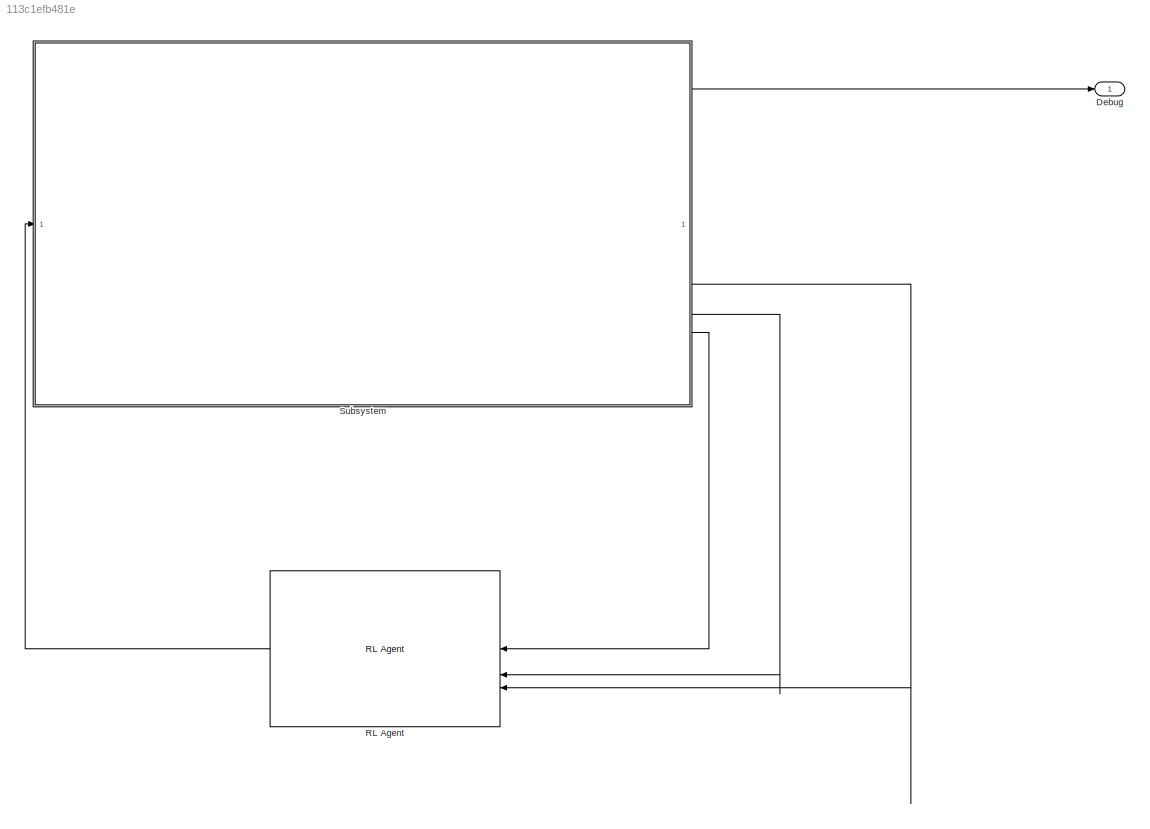
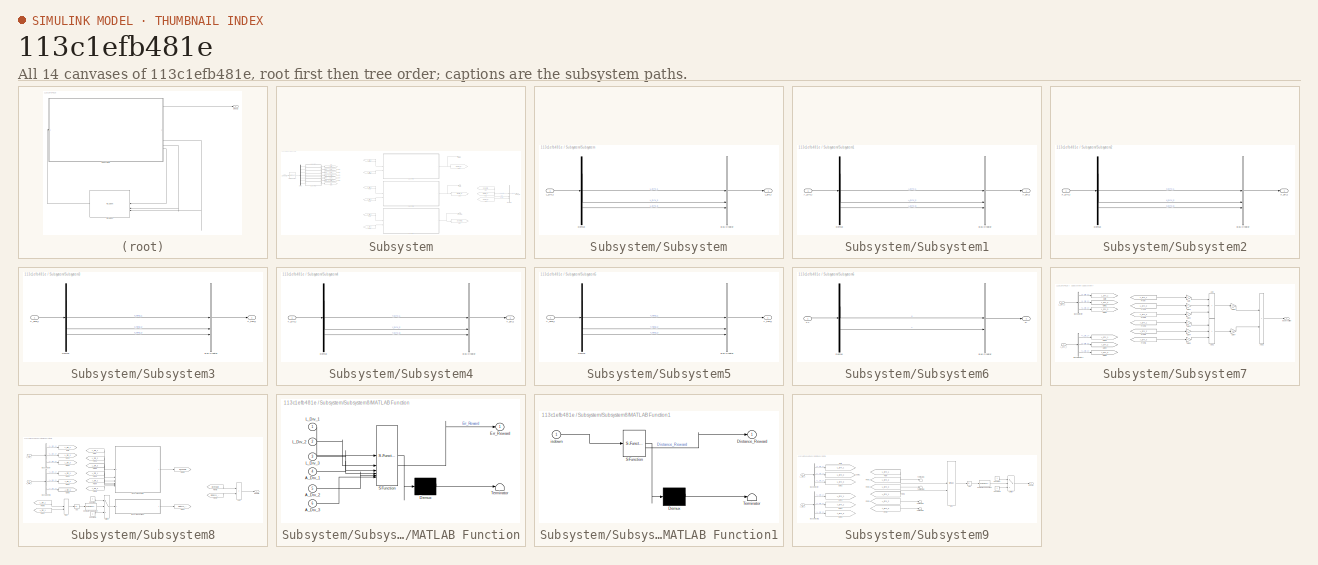
[diagram: thumbnail index - all 14 canvases of the model, root first then tree order]
MODEL slx_113c1efb481e
KIND model
CONFIG AbsTol = auto
CONFIG EnableMultiTasking = off
CONFIG FixedStep = auto
CONFIG MaxStep = auto
CONFIG MinStep = auto
CONFIG RelTol = 1e-3
CONFIG SampleTimeConstraint = Unconstrained
CONFIG SolverName = VariableStepAuto
CONFIG StartTime = 0.0
CONFIG StopTime = 60
BLOCK [Outport] Debug
BLOCK [Reference] RL Agent  REF=rllib/RL Agent
  NameLocation = top
  SourceBlock = rllib/RL Agent
  SourceType = RL Agent
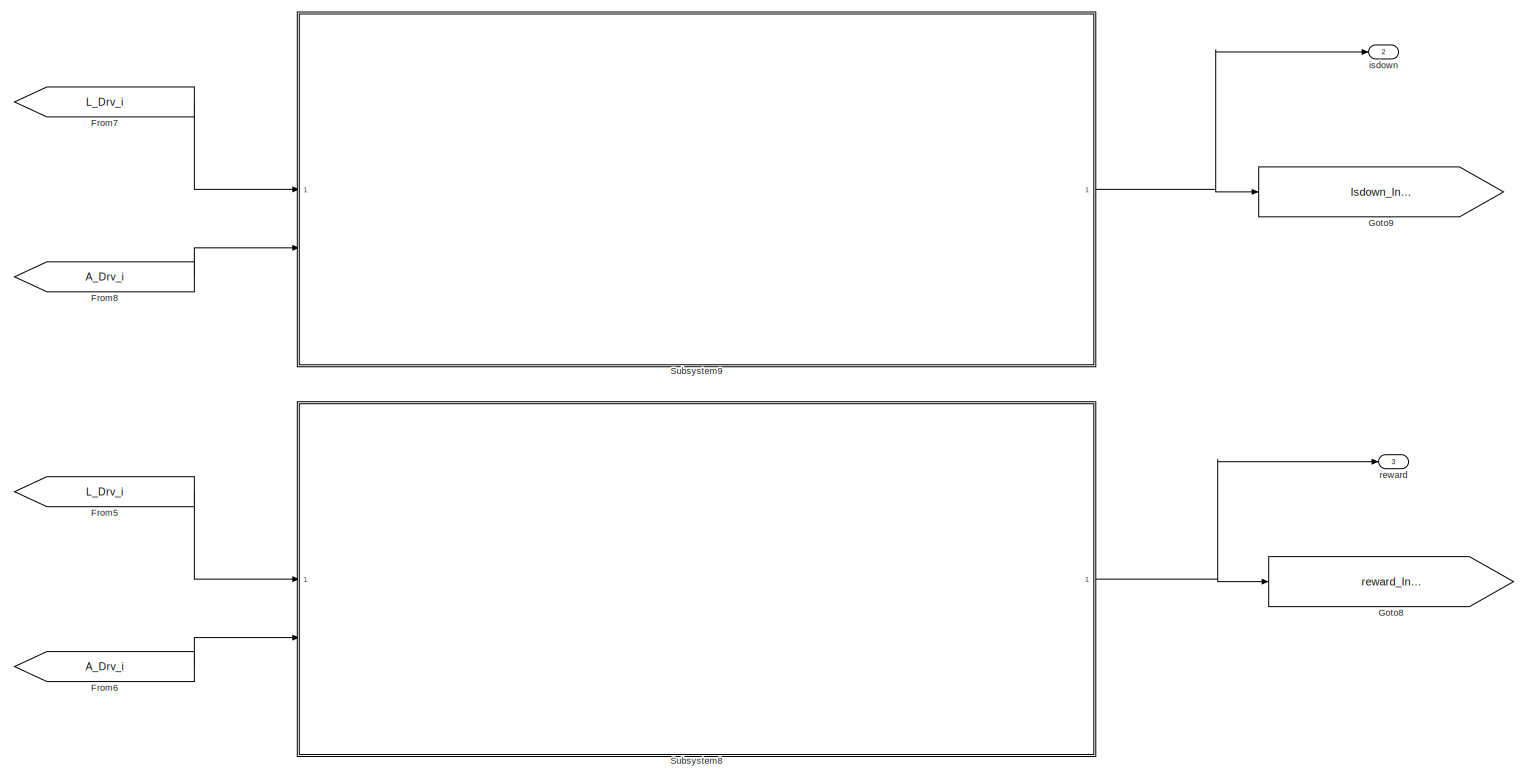
[diagram: Subsystem - part 1/4, central region]
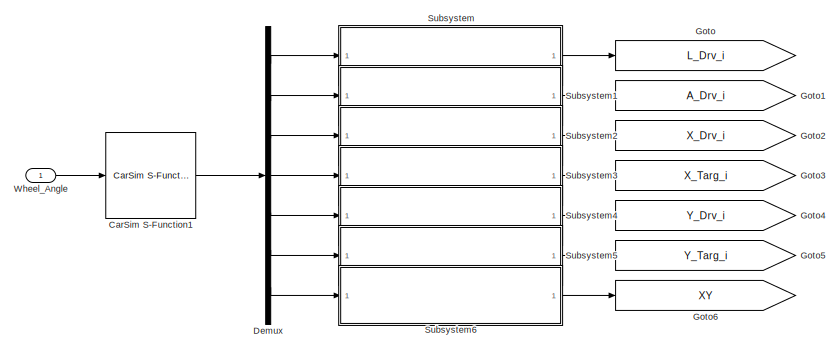
[diagram: Subsystem - part 2/4, top left region]
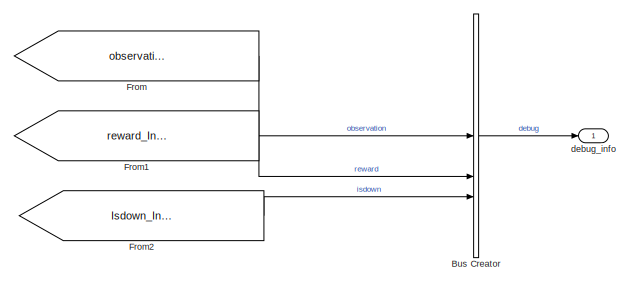
[diagram: Subsystem - part 3/4, middle right region]
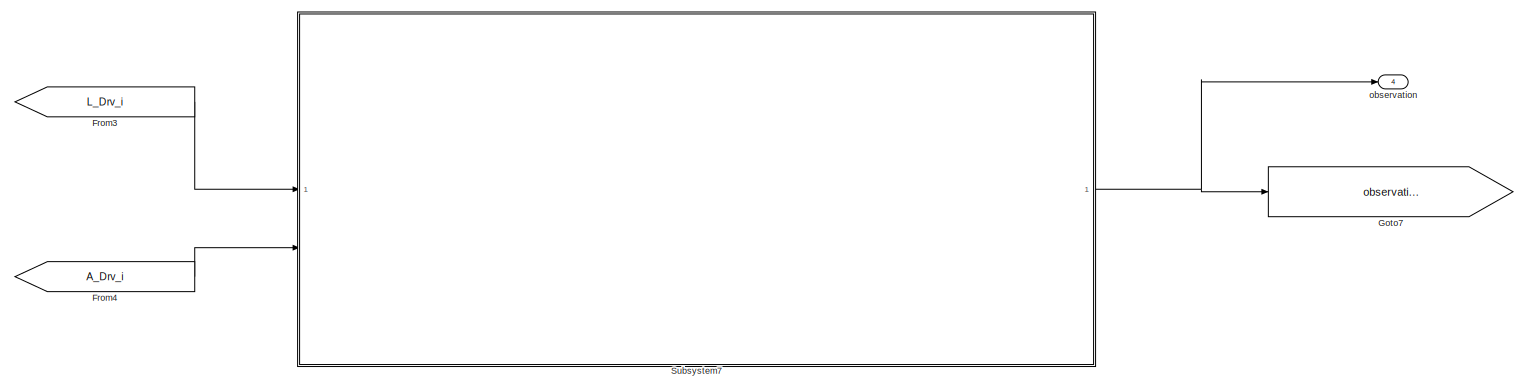
[diagram: Subsystem - part 4/4, bottom center region]
BLOCK [SubSystem] Subsystem
BLOCK [BusCreator] Subsystem/Bus Creator
  DisplayOption = bar
  InheritFromInputs = on
  Inputs = 3
BLOCK [Reference] Subsystem/CarSim S-Function1  REF=Solver_SF/CarSim S-Function
  Priority = 1
  SourceBlock = Solver_SF/CarSim S-Function
  SourceProductName = CarSim S-Function
  SourceType = Vehicle math model library
BLOCK [Demux] Subsystem/Demux
  Outputs = [3 3 3 3 3 3 2]
BLOCK [From] Subsystem/From
  GotoTag = observation_Info
BLOCK [From] Subsystem/From1
  GotoTag = reward_Info
BLOCK [From] Subsystem/From2
  GotoTag = Isdown_Info
BLOCK [From] Subsystem/From3
  GotoTag = L_Drv_i
BLOCK [From] Subsystem/From4
  GotoTag = A_Drv_i
BLOCK [From] Subsystem/From5
  GotoTag = L_Drv_i
BLOCK [From] Subsystem/From6
  GotoTag = A_Drv_i
BLOCK [From] Subsystem/From7
  GotoTag = L_Drv_i
BLOCK [From] Subsystem/From8
  GotoTag = A_Drv_i
BLOCK [Goto] Subsystem/Goto
  GotoTag = L_Drv_i
BLOCK [Goto] Subsystem/Goto1
  GotoTag = A_Drv_i
BLOCK [Goto] Subsystem/Goto2
  GotoTag = X_Drv_i
BLOCK [Goto] Subsystem/Goto3
  GotoTag = X_Targ_i
BLOCK [Goto] Subsystem/Goto4
  GotoTag = Y_Drv_i
BLOCK [Goto] Subsystem/Goto5
  GotoTag = Y_Targ_i
BLOCK [Goto] Subsystem/Goto6
  GotoTag = XY
BLOCK [Goto] Subsystem/Goto7
  GotoTag = observation_Info
BLOCK [Goto] Subsystem/Goto8
  GotoTag = reward_Info
BLOCK [Goto] Subsystem/Goto9
  GotoTag = Isdown_Info
BLOCK [SubSystem] Subsystem/Subsystem
BLOCK [BusCreator] Subsystem/Subsystem/Bus Creator
  DisplayOption = bar
  InheritFromInputs = on
  Inputs = 3
BLOCK [Demux] Subsystem/Subsystem/Demux
  Outputs = 3
BLOCK [Inport] Subsystem/Subsystem/L_Drv_i
BLOCK [Outport] Subsystem/Subsystem/L_drv_i
BLOCK [SubSystem] Subsystem/Subsystem1
BLOCK [Inport] Subsystem/Subsystem1/A_Drv_i
BLOCK [Outport] Subsystem/Subsystem1/A_drv_i
BLOCK [BusCreator] Subsystem/Subsystem1/Bus Creator
  DisplayOption = bar
  InheritFromInputs = on
  Inputs = 3
BLOCK [Demux] Subsystem/Subsystem1/Demux
  Outputs = 3
BLOCK [SubSystem] Subsystem/Subsystem2
BLOCK [BusCreator] Subsystem/Subsystem2/Bus Creator
  DisplayOption = bar
  InheritFromInputs = on
  Inputs = 3
BLOCK [Demux] Subsystem/Subsystem2/Demux
  Outputs = 3
BLOCK [Inport] Subsystem/Subsystem2/X_Drv_i
BLOCK [Outport] Subsystem/Subsystem2/X_drv_i
BLOCK [SubSystem] Subsystem/Subsystem3
BLOCK [BusCreator] Subsystem/Subsystem3/Bus Creator
  DisplayOption = bar
  InheritFromInputs = on
  Inputs = 3
BLOCK [Demux] Subsystem/Subsystem3/Demux
  Outputs = 3
BLOCK [Inport] Subsystem/Subsystem3/X_Targ_i
BLOCK [Outport] Subsystem/Subsystem3/X_targ_i
BLOCK [SubSystem] Subsystem/Subsystem4
BLOCK [BusCreator] Subsystem/Subsystem4/Bus Creator
  DisplayOption = bar
  InheritFromInputs = on
  Inputs = 3
BLOCK [Demux] Subsystem/Subsystem4/Demux
  Outputs = 3
BLOCK [Inport] Subsystem/Subsystem4/Y_Drv_i
BLOCK [Outport] Subsystem/Subsystem4/Y_drv_i
BLOCK [SubSystem] Subsystem/Subsystem5
BLOCK [BusCreator] Subsystem/Subsystem5/Bus Creator
  DisplayOption = bar
  InheritFromInputs = on
  Inputs = 3
BLOCK [Demux] Subsystem/Subsystem5/Demux
  Outputs = 3
BLOCK [Inport] Subsystem/Subsystem5/Y_Targ_i
BLOCK [Outport] Subsystem/Subsystem5/Y_targ_i
BLOCK [SubSystem] Subsystem/Subsystem6
BLOCK [BusCreator] Subsystem/Subsystem6/Bus Creator
  DisplayOption = bar
  InheritFromInputs = on
  Inputs = 2
BLOCK [Demux] Subsystem/Subsystem6/Demux
  Outputs = 2
BLOCK [Inport] Subsystem/Subsystem6/XY
BLOCK [Outport] Subsystem/Subsystem6/xy
BLOCK [SubSystem] Subsystem/Subsystem7
BLOCK [Inport] Subsystem/Subsystem7/A_Drv_i
  Port = 2
BLOCK [Sum] Subsystem/Subsystem7/Add
  IconShape = rectangular
  Inputs = +++
BLOCK [Sum] Subsystem/Subsystem7/Add1
  IconShape = rectangular
  Inputs = +++
BLOCK [Sum] Subsystem/Subsystem7/Add2
  IconShape = rectangular
BLOCK [BusSelector] Subsystem/Subsystem7/Bus Selector
  OutputSignals = L_Drv_1,L_Drv_2,L_Drv_3
BLOCK [BusSelector] Subsystem/Subsystem7/Bus Selector1
  OutputSignals = A_Drv_1,A_Drv_2,A_Drv_3
BLOCK [From] Subsystem/Subsystem7/From
  GotoTag = L_Drv_1
BLOCK [From] Subsystem/Subsystem7/From1
  GotoTag = L_Drv_2
BLOCK [From] Subsystem/Subsystem7/From2
  GotoTag = L_Drv_3
BLOCK [From] Subsystem/Subsystem7/From3
  GotoTag = A_Drv_1
BLOCK [From] Subsystem/Subsystem7/From4
  GotoTag = A_Drv_2
BLOCK [From] Subsystem/Subsystem7/From5
  GotoTag = A_Drv_3
BLOCK [Gain] Subsystem/Subsystem7/Gain
  Gain = 6
BLOCK [Gain] Subsystem/Subsystem7/Gain1
  Gain = 4
BLOCK [Gain] Subsystem/Subsystem7/Gain2
BLOCK [Gain] Subsystem/Subsystem7/Gain3
  Gain = 6
BLOCK [Gain] Subsystem/Subsystem7/Gain4
  Gain = 4
BLOCK [Gain] Subsystem/Subsystem7/Gain5
BLOCK [Gain] Subsystem/Subsystem7/Gain6
  Gain = 10
BLOCK [Gain] Subsystem/Subsystem7/Gain7
  Gain = 10
BLOCK [Goto] Subsystem/Subsystem7/Goto
  GotoTag = L_Drv_1
BLOCK [Goto] Subsystem/Subsystem7/Goto1
  GotoTag = L_Drv_2
BLOCK [Goto] Subsystem/Subsystem7/Goto2
  GotoTag = L_Drv_3
BLOCK [Goto] Subsystem/Subsystem7/Goto3
  GotoTag = A_Drv_1
BLOCK [Goto] Subsystem/Subsystem7/Goto4
  GotoTag = A_Drv_2
BLOCK [Goto] Subsystem/Subsystem7/Goto5
  GotoTag = A_Drv_3
BLOCK [Inport] Subsystem/Subsystem7/L_Drv_i
BLOCK [Outport] Subsystem/Subsystem7/observation
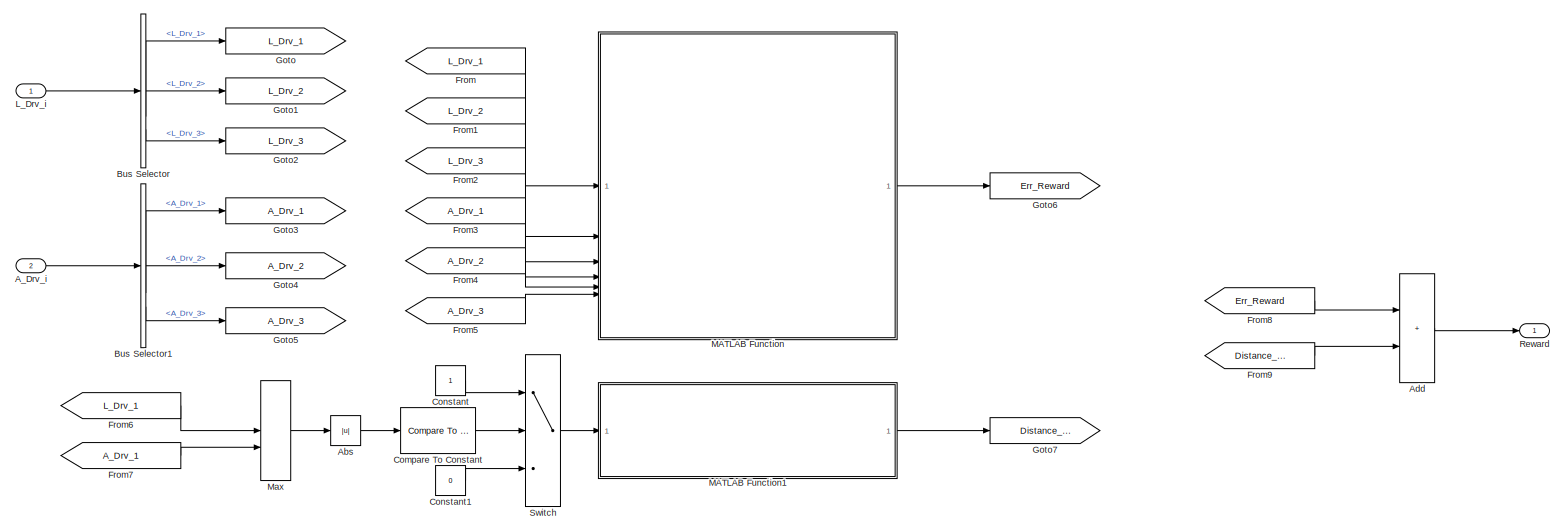
[diagram: Subsystem/Subsystem8 - part 1/1, most of the canvas]
BLOCK [SubSystem] Subsystem/Subsystem8
BLOCK [Inport] Subsystem/Subsystem8/A_Drv_i
  Port = 2
BLOCK [Abs] Subsystem/Subsystem8/Abs
  SaturateOnIntegerOverflow = off
BLOCK [Sum] Subsystem/Subsystem8/Add
  IconShape = rectangular
BLOCK [BusSelector] Subsystem/Subsystem8/Bus Selector
  OutputSignals = L_Drv_1,L_Drv_2,L_Drv_3
BLOCK [BusSelector] Subsystem/Subsystem8/Bus Selector1
  OutputSignals = A_Drv_1,A_Drv_2,A_Drv_3
BLOCK [Reference] Subsystem/Subsystem8/Compare To Constant  REF=simulink/Logic and Bit
Operations/Compare
To Constant
  SourceBlock = simulink/Logic and Bit\nOperations/Compare\nTo Constant
  SourceType = Compare To Constant
BLOCK [Constant] Subsystem/Subsystem8/Constant
  OutDataTypeStr = boolean
BLOCK [Constant] Subsystem/Subsystem8/Constant1
  OutDataTypeStr = boolean
  Value = 0
BLOCK [From] Subsystem/Subsystem8/From
  GotoTag = L_Drv_1
BLOCK [From] Subsystem/Subsystem8/From1
  GotoTag = L_Drv_2
BLOCK [From] Subsystem/Subsystem8/From2
  GotoTag = L_Drv_3
BLOCK [From] Subsystem/Subsystem8/From3
  GotoTag = A_Drv_1
BLOCK [From] Subsystem/Subsystem8/From4
  GotoTag = A_Drv_2
BLOCK [From] Subsystem/Subsystem8/From5
  GotoTag = A_Drv_3
BLOCK [From] Subsystem/Subsystem8/From6
  GotoTag = L_Drv_1
BLOCK [From] Subsystem/Subsystem8/From7
  GotoTag = A_Drv_1
BLOCK [From] Subsystem/Subsystem8/From8
  GotoTag = Err_Reward
BLOCK [From] Subsystem/Subsystem8/From9
  GotoTag = Distance_Reward
BLOCK [Goto] Subsystem/Subsystem8/Goto
  GotoTag = L_Drv_1
BLOCK [Goto] Subsystem/Subsystem8/Goto1
  GotoTag = L_Drv_2
BLOCK [Goto] Subsystem/Subsystem8/Goto2
  GotoTag = L_Drv_3
BLOCK [Goto] Subsystem/Subsystem8/Goto3
  GotoTag = A_Drv_1
BLOCK [Goto] Subsystem/Subsystem8/Goto4
  GotoTag = A_Drv_2
BLOCK [Goto] Subsystem/Subsystem8/Goto5
  GotoTag = A_Drv_3
BLOCK [Goto] Subsystem/Subsystem8/Goto6
  GotoTag = Err_Reward
BLOCK [Goto] Subsystem/Subsystem8/Goto7
  GotoTag = Distance_Reward
BLOCK [Inport] Subsystem/Subsystem8/L_Drv_i
BLOCK [SubSystem] Subsystem/Subsystem8/MATLAB Function
  ErrorFcn = Stateflow.Translate.translate
  PermitHierarchicalResolution = ExplicitOnly
  SFBlockType = MATLAB Function
  TreatAsAtomicUnit = on
BLOCK [Demux] Subsystem/Subsystem8/MATLAB Function/ Demux 
  Outputs = 1
BLOCK [S-Function] Subsystem/Subsystem8/MATLAB Function/ SFunction 
  EnableBusSupport = on
  FunctionName = sf_sfun
  PortCounts = [6 2]
  SFcnIsStateOwnerBlock = off
  SFunctionDeploymentMode = off
  Tag = Stateflow S-Function 2
BLOCK [Terminator] Subsystem/Subsystem8/MATLAB Function/ Terminator 
BLOCK [Inport] Subsystem/Subsystem8/MATLAB Function/A_Drv_1
  Port = 4
BLOCK [Inport] Subsystem/Subsystem8/MATLAB Function/A_Drv_2
  Port = 5
BLOCK [Inport] Subsystem/Subsystem8/MATLAB Function/A_Drv_3
  Port = 6
BLOCK [Outport] Subsystem/Subsystem8/MATLAB Function/Err_Reward
BLOCK [Inport] Subsystem/Subsystem8/MATLAB Function/L_Drv_1
BLOCK [Inport] Subsystem/Subsystem8/MATLAB Function/L_Drv_2
  Port = 2
BLOCK [Inport] Subsystem/Subsystem8/MATLAB Function/L_Drv_3
  Port = 3
BLOCK [SubSystem] Subsystem/Subsystem8/MATLAB Function1
  ErrorFcn = Stateflow.Translate.translate
  PermitHierarchicalResolution = ExplicitOnly
  SFBlockType = MATLAB Function
  TreatAsAtomicUnit = on
BLOCK [Demux] Subsystem/Subsystem8/MATLAB Function1/ Demux 
  Outputs = 1
BLOCK [S-Function] Subsystem/Subsystem8/MATLAB Function1/ SFunction 
  EnableBusSupport = on
  FunctionName = sf_sfun
  PortCounts = [1 2]
  SFcnIsStateOwnerBlock = off
  SFunctionDeploymentMode = off
  Tag = Stateflow S-Function 1
BLOCK [Terminator] Subsystem/Subsystem8/MATLAB Function1/ Terminator 
BLOCK [Outport] Subsystem/Subsystem8/MATLAB Function1/Distance_Reward
BLOCK [Inport] Subsystem/Subsystem8/MATLAB Function1/isdown
BLOCK [MinMax] Subsystem/Subsystem8/Max
  Function = max
  Inputs = 2
BLOCK [Outport] Subsystem/Subsystem8/Reward
BLOCK [Switch] Subsystem/Subsystem8/Switch
  Criteria = u2 > Threshold
  InputSameDT = off
  SaturateOnIntegerOverflow = off
BLOCK [SubSystem] Subsystem/Subsystem9
BLOCK [Inport] Subsystem/Subsystem9/A_Drv_i
  Port = 2
BLOCK [Abs] Subsystem/Subsystem9/Abs
  SaturateOnIntegerOverflow = off
BLOCK [BusSelector] Subsystem/Subsystem9/Bus Selector
  OutputSignals = L_Drv_1,L_Drv_2,L_Drv_3
BLOCK [BusSelector] Subsystem/Subsystem9/Bus Selector1
  OutputSignals = A_Drv_1,A_Drv_2,A_Drv_3
BLOCK [Reference] Subsystem/Subsystem9/Compare To Constant  REF=simulink/Logic and Bit
Operations/Compare
To Constant
  SourceBlock = simulink/Logic and Bit\nOperations/Compare\nTo Constant
  SourceType = Compare To Constant
BLOCK [Constant] Subsystem/Subsystem9/Constant
  OutDataTypeStr = boolean
BLOCK [Constant] Subsystem/Subsystem9/Constant1
  OutDataTypeStr = boolean
  Value = 0
BLOCK [From] Subsystem/Subsystem9/From
  GotoTag = L_Drv_1
BLOCK [From] Subsystem/Subsystem9/From1
  GotoTag = L_Drv_2
BLOCK [From] Subsystem/Subsystem9/From2
  GotoTag = L_Drv_3
BLOCK [From] Subsystem/Subsystem9/From3
  GotoTag = A_Drv_1
BLOCK [From] Subsystem/Subsystem9/From4
  GotoTag = A_Drv_2
BLOCK [From] Subsystem/Subsystem9/From5
  GotoTag = A_Drv_3
BLOCK [Goto] Subsystem/Subsystem9/Goto
  GotoTag = L_Drv_1
BLOCK [Goto] Subsystem/Subsystem9/Goto1
  GotoTag = L_Drv_2
BLOCK [Goto] Subsystem/Subsystem9/Goto2
  GotoTag = L_Drv_3
BLOCK [Goto] Subsystem/Subsystem9/Goto3
  GotoTag = A_Drv_1
BLOCK [Goto] Subsystem/Subsystem9/Goto4
  GotoTag = A_Drv_2
BLOCK [Goto] Subsystem/Subsystem9/Goto5
  GotoTag = A_Drv_3
BLOCK [Inport] Subsystem/Subsystem9/L_Drv_i
BLOCK [MinMax] Subsystem/Subsystem9/Max
  Function = max
  Inputs = 2
BLOCK [Switch] Subsystem/Subsystem9/Switch
  Criteria = u2 > Threshold
  InputSameDT = off
  SaturateOnIntegerOverflow = off
BLOCK [Terminator] Subsystem/Subsystem9/Terminator1
BLOCK [Terminator] Subsystem/Subsystem9/Terminator2
BLOCK [Terminator] Subsystem/Subsystem9/Terminator4
BLOCK [Terminator] Subsystem/Subsystem9/Terminator5
BLOCK [Outport] Subsystem/Subsystem9/isdown
BLOCK [Inport] Subsystem/Wheel_Angle
BLOCK [Outport] Subsystem/debug_info
BLOCK [Outport] Subsystem/isdown
  Port = 2
BLOCK [Outport] Subsystem/observation
  Port = 4
BLOCK [Outport] Subsystem/reward
  Port = 3
LINE RL Agent:1 -> Subsystem:1
LINE Subsystem/Bus Creator:1 -> Subsystem/debug_info:1
LINE Subsystem/CarSim S-Function1:1 -> Subsystem/Demux:1
LINE Subsystem/Demux:1 -> Subsystem/Subsystem:1
LINE Subsystem/Demux:2 -> Subsystem/Subsystem1:1
LINE Subsystem/Demux:3 -> Subsystem/Subsystem2:1
LINE Subsystem/Demux:4 -> Subsystem/Subsystem3:1
LINE Subsystem/Demux:5 -> Subsystem/Subsystem4:1
LINE Subsystem/Demux:6 -> Subsystem/Subsystem5:1
LINE Subsystem/Demux:7 -> Subsystem/Subsystem6:1
LINE Subsystem/From1:1 -> Subsystem/Bus Creator:2
LINE Subsystem/From2:1 -> Subsystem/Bus Creator:3
LINE Subsystem/From3:1 -> Subsystem/Subsystem7:1
LINE Subsystem/From4:1 -> Subsystem/Subsystem7:2
LINE Subsystem/From5:1 -> Subsystem/Subsystem8:1
LINE Subsystem/From6:1 -> Subsystem/Subsystem8:2
LINE Subsystem/From7:1 -> Subsystem/Subsystem9:1
LINE Subsystem/From8:1 -> Subsystem/Subsystem9:2
LINE Subsystem/From:1 -> Subsystem/Bus Creator:1
LINE Subsystem/Subsystem/Bus Creator:1 -> Subsystem/Subsystem/L_drv_i:1
LINE Subsystem/Subsystem/Demux:1 -> Subsystem/Subsystem/Bus Creator:1
LINE Subsystem/Subsystem/Demux:2 -> Subsystem/Subsystem/Bus Creator:2
LINE Subsystem/Subsystem/Demux:3 -> Subsystem/Subsystem/Bus Creator:3
LINE Subsystem/Subsystem/L_Drv_i:1 -> Subsystem/Subsystem/Demux:1
LINE Subsystem/Subsystem1/A_Drv_i:1 -> Subsystem/Subsystem1/Demux:1
LINE Subsystem/Subsystem1/Bus Creator:1 -> Subsystem/Subsystem1/A_drv_i:1
LINE Subsystem/Subsystem1/Demux:1 -> Subsystem/Subsystem1/Bus Creator:1
LINE Subsystem/Subsystem1/Demux:2 -> Subsystem/Subsystem1/Bus Creator:2
LINE Subsystem/Subsystem1/Demux:3 -> Subsystem/Subsystem1/Bus Creator:3
LINE Subsystem/Subsystem1:1 -> Subsystem/Goto1:1
LINE Subsystem/Subsystem2/Bus Creator:1 -> Subsystem/Subsystem2/X_drv_i:1
LINE Subsystem/Subsystem2/Demux:1 -> Subsystem/Subsystem2/Bus Creator:1
LINE Subsystem/Subsystem2/Demux:2 -> Subsystem/Subsystem2/Bus Creator:2
LINE Subsystem/Subsystem2/Demux:3 -> Subsystem/Subsystem2/Bus Creator:3
LINE Subsystem/Subsystem2/X_Drv_i:1 -> Subsystem/Subsystem2/Demux:1
LINE Subsystem/Subsystem2:1 -> Subsystem/Goto2:1
LINE Subsystem/Subsystem3/Bus Creator:1 -> Subsystem/Subsystem3/X_targ_i:1
LINE Subsystem/Subsystem3/Demux:1 -> Subsystem/Subsystem3/Bus Creator:1
LINE Subsystem/Subsystem3/Demux:2 -> Subsystem/Subsystem3/Bus Creator:2
LINE Subsystem/Subsystem3/Demux:3 -> Subsystem/Subsystem3/Bus Creator:3
LINE Subsystem/Subsystem3/X_Targ_i:1 -> Subsystem/Subsystem3/Demux:1
LINE Subsystem/Subsystem3:1 -> Subsystem/Goto3:1
LINE Subsystem/Subsystem4/Bus Creator:1 -> Subsystem/Subsystem4/Y_drv_i:1
LINE Subsystem/Subsystem4/Demux:1 -> Subsystem/Subsystem4/Bus Creator:1
LINE Subsystem/Subsystem4/Demux:2 -> Subsystem/Subsystem4/Bus Creator:2
LINE Subsystem/Subsystem4/Demux:3 -> Subsystem/Subsystem4/Bus Creator:3
LINE Subsystem/Subsystem4/Y_Drv_i:1 -> Subsystem/Subsystem4/Demux:1
LINE Subsystem/Subsystem4:1 -> Subsystem/Goto4:1
LINE Subsystem/Subsystem5/Bus Creator:1 -> Subsystem/Subsystem5/Y_targ_i:1
LINE Subsystem/Subsystem5/Demux:1 -> Subsystem/Subsystem5/Bus Creator:1
LINE Subsystem/Subsystem5/Demux:2 -> Subsystem/Subsystem5/Bus Creator:2
LINE Subsystem/Subsystem5/Demux:3 -> Subsystem/Subsystem5/Bus Creator:3
LINE Subsystem/Subsystem5/Y_Targ_i:1 -> Subsystem/Subsystem5/Demux:1
LINE Subsystem/Subsystem5:1 -> Subsystem/Goto5:1
LINE Subsystem/Subsystem6/Bus Creator:1 -> Subsystem/Subsystem6/xy:1
LINE Subsystem/Subsystem6/Demux:1 -> Subsystem/Subsystem6/Bus Creator:1
LINE Subsystem/Subsystem6/Demux:2 -> Subsystem/Subsystem6/Bus Creator:2
LINE Subsystem/Subsystem6/XY:1 -> Subsystem/Subsystem6/Demux:1
LINE Subsystem/Subsystem6:1 -> Subsystem/Goto6:1
LINE Subsystem/Subsystem7/A_Drv_i:1 -> Subsystem/Subsystem7/Bus Selector1:1
LINE Subsystem/Subsystem7/Add1:1 -> Subsystem/Subsystem7/Gain7:1
LINE Subsystem/Subsystem7/Add2:1 -> Subsystem/Subsystem7/observation:1
LINE Subsystem/Subsystem7/Add:1 -> Subsystem/Subsystem7/Gain6:1
LINE Subsystem/Subsystem7/Bus Selector1:1 -> Subsystem/Subsystem7/Goto3:1
LINE Subsystem/Subsystem7/Bus Selector1:2 -> Subsystem/Subsystem7/Goto4:1
LINE Subsystem/Subsystem7/Bus Selector1:3 -> Subsystem/Subsystem7/Goto5:1
LINE Subsystem/Subsystem7/Bus Selector:1 -> Subsystem/Subsystem7/Goto:1
LINE Subsystem/Subsystem7/Bus Selector:2 -> Subsystem/Subsystem7/Goto1:1
LINE Subsystem/Subsystem7/Bus Selector:3 -> Subsystem/Subsystem7/Goto2:1
LINE Subsystem/Subsystem7/From1:1 -> Subsystem/Subsystem7/Gain1:1
LINE Subsystem/Subsystem7/From2:1 -> Subsystem/Subsystem7/Gain2:1
LINE Subsystem/Subsystem7/From3:1 -> Subsystem/Subsystem7/Gain3:1
LINE Subsystem/Subsystem7/From4:1 -> Subsystem/Subsystem7/Gain4:1
LINE Subsystem/Subsystem7/From5:1 -> Subsystem/Subsystem7/Gain5:1
LINE Subsystem/Subsystem7/From:1 -> Subsystem/Subsystem7/Gain:1
LINE Subsystem/Subsystem7/Gain1:1 -> Subsystem/Subsystem7/Add:2
LINE Subsystem/Subsystem7/Gain2:1 -> Subsystem/Subsystem7/Add:3
LINE Subsystem/Subsystem7/Gain3:1 -> Subsystem/Subsystem7/Add1:1
LINE Subsystem/Subsystem7/Gain4:1 -> Subsystem/Subsystem7/Add1:2
LINE Subsystem/Subsystem7/Gain5:1 -> Subsystem/Subsystem7/Add1:3
LINE Subsystem/Subsystem7/Gain6:1 -> Subsystem/Subsystem7/Add2:1
LINE Subsystem/Subsystem7/Gain7:1 -> Subsystem/Subsystem7/Add2:2
LINE Subsystem/Subsystem7/Gain:1 -> Subsystem/Subsystem7/Add:1
LINE Subsystem/Subsystem7/L_Drv_i:1 -> Subsystem/Subsystem7/Bus Selector:1
NET Subsystem/Subsystem7:1 -> Subsystem/Goto7:1, Subsystem/observation:1
LINE Subsystem/Subsystem8/A_Drv_i:1 -> Subsystem/Subsystem8/Bus Selector1:1
LINE Subsystem/Subsystem8/Abs:1 -> Subsystem/Subsystem8/Compare To Constant:1
LINE Subsystem/Subsystem8/Add:1 -> Subsystem/Subsystem8/Reward:1
LINE Subsystem/Subsystem8/Bus Selector1:1 -> Subsystem/Subsystem8/Goto3:1
LINE Subsystem/Subsystem8/Bus Selector1:2 -> Subsystem/Subsystem8/Goto4:1
LINE Subsystem/Subsystem8/Bus Selector1:3 -> Subsystem/Subsystem8/Goto5:1
LINE Subsystem/Subsystem8/Bus Selector:1 -> Subsystem/Subsystem8/Goto:1
LINE Subsystem/Subsystem8/Bus Selector:2 -> Subsystem/Subsystem8/Goto1:1
LINE Subsystem/Subsystem8/Bus Selector:3 -> Subsystem/Subsystem8/Goto2:1
LINE Subsystem/Subsystem8/Compare To Constant:1 -> Subsystem/Subsystem8/Switch:2
LINE Subsystem/Subsystem8/Constant1:1 -> Subsystem/Subsystem8/Switch:3
LINE Subsystem/Subsystem8/Constant:1 -> Subsystem/Subsystem8/Switch:1
LINE Subsystem/Subsystem8/From1:1 -> Subsystem/Subsystem8/MATLAB Function:2
LINE Subsystem/Subsystem8/From2:1 -> Subsystem/Subsystem8/MATLAB Function:3
LINE Subsystem/Subsystem8/From3:1 -> Subsystem/Subsystem8/MATLAB Function:4
LINE Subsystem/Subsystem8/From4:1 -> Subsystem/Subsystem8/MATLAB Function:5
LINE Subsystem/Subsystem8/From5:1 -> Subsystem/Subsystem8/MATLAB Function:6
LINE Subsystem/Subsystem8/From6:1 -> Subsystem/Subsystem8/Max:1
LINE Subsystem/Subsystem8/From7:1 -> Subsystem/Subsystem8/Max:2
LINE Subsystem/Subsystem8/From8:1 -> Subsystem/Subsystem8/Add:1
LINE Subsystem/Subsystem8/From9:1 -> Subsystem/Subsystem8/Add:2
LINE Subsystem/Subsystem8/From:1 -> Subsystem/Subsystem8/MATLAB Function:1
LINE Subsystem/Subsystem8/L_Drv_i:1 -> Subsystem/Subsystem8/Bus Selector:1
LINE Subsystem/Subsystem8/MATLAB Function1:1 -> Subsystem/Subsystem8/Goto7:1
LINE Subsystem/Subsystem8/MATLAB Function:1 -> Subsystem/Subsystem8/Goto6:1
LINE Subsystem/Subsystem8/Max:1 -> Subsystem/Subsystem8/Abs:1
LINE Subsystem/Subsystem8/Switch:1 -> Subsystem/Subsystem8/MATLAB Function1:1
NET Subsystem/Subsystem8:1 -> Subsystem/Goto8:1, Subsystem/reward:1
LINE Subsystem/Subsystem9/A_Drv_i:1 -> Subsystem/Subsystem9/Bus Selector1:1
LINE Subsystem/Subsystem9/Abs:1 -> Subsystem/Subsystem9/Compare To Constant:1
LINE Subsystem/Subsystem9/Bus Selector1:1 -> Subsystem/Subsystem9/Goto3:1
LINE Subsystem/Subsystem9/Bus Selector1:2 -> Subsystem/Subsystem9/Goto4:1
LINE Subsystem/Subsystem9/Bus Selector1:3 -> Subsystem/Subsystem9/Goto5:1
LINE Subsystem/Subsystem9/Bus Selector:1 -> Subsystem/Subsystem9/Goto:1
LINE Subsystem/Subsystem9/Bus Selector:2 -> Subsystem/Subsystem9/Goto1:1
LINE Subsystem/Subsystem9/Bus Selector:3 -> Subsystem/Subsystem9/Goto2:1
LINE Subsystem/Subsystem9/Compare To Constant:1 -> Subsystem/Subsystem9/Switch:2
LINE Subsystem/Subsystem9/Constant1:1 -> Subsystem/Subsystem9/Switch:3
LINE Subsystem/Subsystem9/Constant:1 -> Subsystem/Subsystem9/Switch:1
LINE Subsystem/Subsystem9/From1:1 -> Subsystem/Subsystem9/Terminator1:1
LINE Subsystem/Subsystem9/From2:1 -> Subsystem/Subsystem9/Terminator2:1
LINE Subsystem/Subsystem9/From3:1 -> Subsystem/Subsystem9/Max:2
LINE Subsystem/Subsystem9/From4:1 -> Subsystem/Subsystem9/Terminator4:1
LINE Subsystem/Subsystem9/From5:1 -> Subsystem/Subsystem9/Terminator5:1
LINE Subsystem/Subsystem9/From:1 -> Subsystem/Subsystem9/Max:1
LINE Subsystem/Subsystem9/L_Drv_i:1 -> Subsystem/Subsystem9/Bus Selector:1
LINE Subsystem/Subsystem9/Max:1 -> Subsystem/Subsystem9/Abs:1
LINE Subsystem/Subsystem9/Switch:1 -> Subsystem/Subsystem9/isdown:1
NET Subsystem/Subsystem9:1 -> Subsystem/Goto9:1, Subsystem/isdown:1
LINE Subsystem/Subsystem:1 -> Subsystem/Goto:1
LINE Subsystem/Wheel_Angle:1 -> Subsystem/CarSim S-Function1:1
LINE Subsystem:1 -> Debug:1
LINE Subsystem:2 -> RL Agent:3
LINE Subsystem:3 -> RL Agent:2
LINE Subsystem:4 -> RL Agent:1
note: NET lines group one-source signal fan-out (src -> all destinations, sorted); 1:1 wires keep LINE
CHART Subsystem/Subsystem8/MATLAB Function1 states=1 transitions=1
  STATE_LABEL 'eML_blk_kernel()'
  STATE_LABEL 'SCRIPT:\nfunction Distance_Reward = fcn(isdown)\n\ncot = 0;\nif isdown == 0\n    cot = cot + 1;\n    Distance_Reward = cot;\nelse\n    Distance_Reward = -100;\nend\nend\n\n'
CHART Subsystem/Subsystem8/MATLAB Function states=1 transitions=1
  STATE_LABEL 'eML_blk_kernel()'
  STATE_LABEL 'SCRIPT:\nfunction Err_Reward = fcn(L_Drv_1, L_Drv_2, L_Drv_3, A_Drv_1, A_Drv_2, A_Drv_3)\n\nL_Err_Reward = -(L_Drv_1 + L_Drv_2 + L_Drv_3);\nA_Err_Reward = -(A_Drv_1 + A_Drv_2 + A_Drv_3);\nErr_Reward = L_Err_Reward + A_Err_Reward;\nend\n\n\n'
CHART  states=0 transitions=0
CHART  states=0 transitions=0
